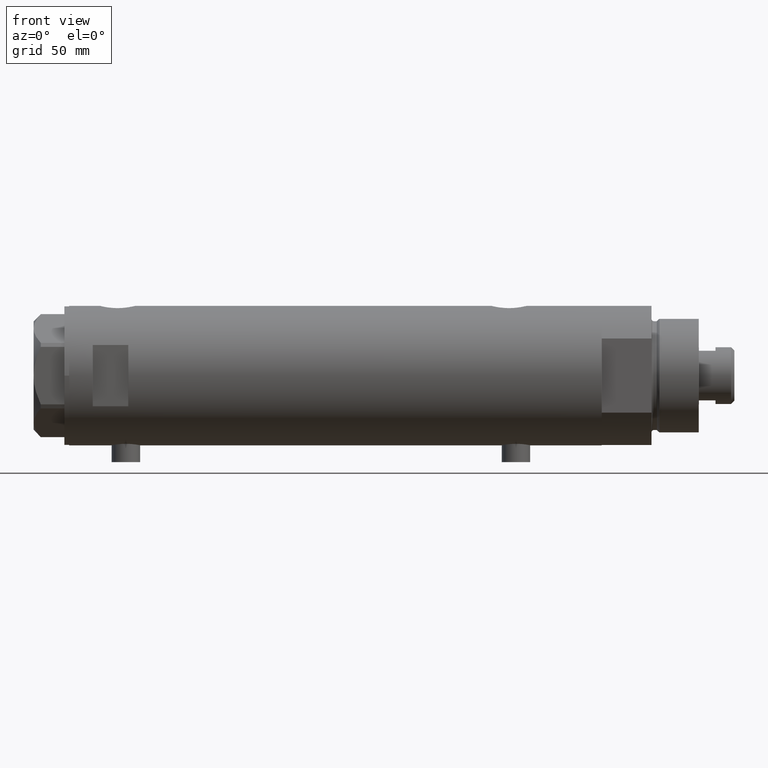
[diagram: clean part render]
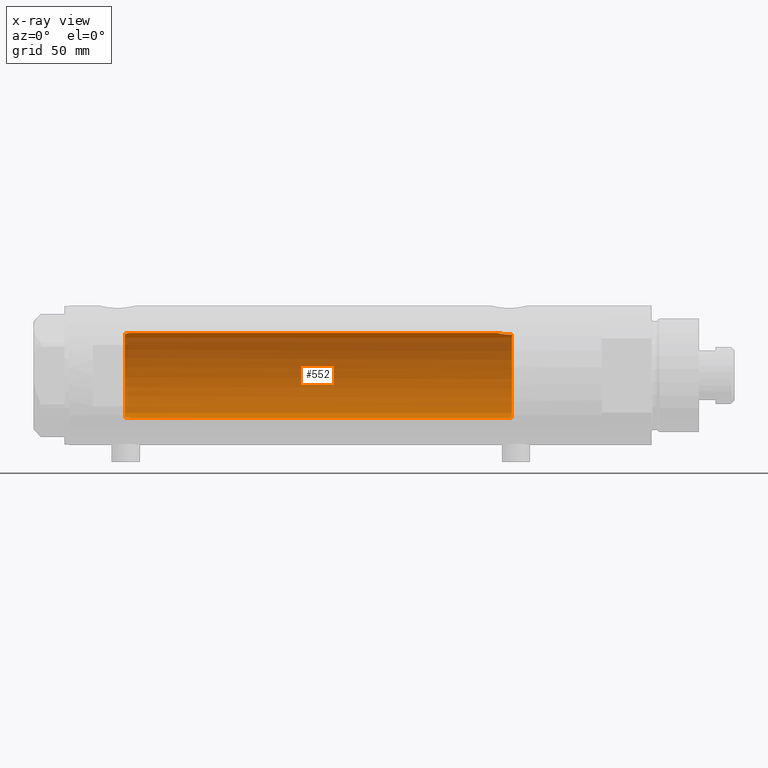
[diagram: x-ray — body ghosted, one internal face saturated and labeled with its STEP entity id]
A machine part, front view, then the same camera in x-ray: the body is ghosted and one INTERNAL B-rep face — a face not visible from any outside direction — is saturated and labeled: STEP entity #552.
In plain terms, the highlighted cylindrical surface (partial cylindrical patch) has radius 18 mm, axis along (1, 0, -0).
Its self-contained STEP definition (entity closure, byte-faithful):
#38 = CARTESIAN_POINT ( 'NONE',  ( 17.98587882862718601, 0.7362002489460812704, -68.58746722239204985 ) ) ;
#111 = CARTESIAN_POINT ( 'NONE',  ( 17.83051055968251930, 2.469307448774135327, -69.20420614498793555 ) ) ;
#116 = VERTEX_POINT ( 'NONE', #2078 ) ;
#178 = CARTESIAN_POINT ( 'NONE',  ( -18.00000000000000000, 0.3463326441765542940, -73.79999999999999716 ) ) ;
#213 = CARTESIAN_POINT ( 'NONE',  ( 17.91007218376326549, 1.805463612197647949, 87.57866376881658255 ) ) ;
#215 = VERTEX_POINT ( 'NONE', #452 ) ;
#222 = EDGE_CURVE ( 'NONE', #2439, #1744, #3154, .T. ) ;
#241 = DIRECTION ( 'NONE',  ( -0.000000000000000000, -0.000000000000000000, -1.000000000000000000 ) ) ;
#250 = CARTESIAN_POINT ( 'NONE',  ( 0.000000000000000000, 0.000000000000000000, 89.09999999999998010 ) ) ;
#260 = ORIENTED_EDGE ( 'NONE', *, *, #2205, .F. ) ;
#280 = CARTESIAN_POINT ( 'NONE',  ( 17.94405978035183580, 1.463580074031383349, -68.74553017623722440 ) ) ;
#320 = CARTESIAN_POINT ( 'NONE',  ( -18.00000000000000000, 3.061617490159550962E-16, 86.09999999999998010 ) ) ;
#359 = CARTESIAN_POINT ( 'NONE',  ( -17.95816418424195504, 1.237771781631975099, 86.42014148713398924 ) ) ;
#380 = AXIS2_PLACEMENT_3D ( 'NONE', #2017, #2712, #4204 ) ;
#385 = CARTESIAN_POINT ( 'NONE',  ( -17.82614870471583401, 2.495683684402662639, 88.36291490437699281 ) ) ;
#452 = CARTESIAN_POINT ( 'NONE',  ( -18.00000000000000000, 3.061617490159550962E-16, 86.09999999999998010 ) ) ;
#536 = CARTESIAN_POINT ( 'NONE',  ( -17.95286768021396284, 1.309280107997305764, -74.16336257470372573 ) ) ;
#546 = CARTESIAN_POINT ( 'NONE',  ( 17.63589737371338728, 3.604488512479872231, -70.12742655266251290 ) ) ;
#552 = ADVANCED_FACE ( 'NONE', ( #2943 ), #681, .F. ) ;
#592 = CARTESIAN_POINT ( 'NONE',  ( -17.83255450012700649, 2.449489742783172996, 89.09999999999998010 ) ) ;
#640 = CARTESIAN_POINT ( 'NONE',  ( -17.90642342847949919, 1.833030277983170642, -74.59999999999932641 ) ) ;
#653 = CARTESIAN_POINT ( 'NONE',  ( 0.000000000000000000, 0.000000000000000000, 112.5999999999999801 ) ) ;
#675 = B_SPLINE_CURVE_WITH_KNOTS ( 'NONE', 3,
 ( #1695, #1621, #2024, #536, #2694, #3816, #178, #3158 ),
 .UNSPECIFIED., .F., .F.,
 ( 4, 2, 2, 4 ),
 ( 0.01360098575045322854, 0.01411306367951529507, 0.01462514160857735987, 0.01564929746670149294 ),
 .UNSPECIFIED. ) ;
#681 = CYLINDRICAL_SURFACE ( 'NONE', #4507, 18.00000000000000000 ) ;
#708 = CARTESIAN_POINT ( 'NONE',  ( 17.32928165965088141, 4.867855194001448282, -73.31899018256650891 ) ) ;
#730 = CARTESIAN_POINT ( 'NONE',  ( -17.98790814410162398, 0.7389993272946852043, 86.18352974933831945 ) ) ;
#795 = CIRCLE ( 'NONE', #380, 18.00000000000000000 ) ;
#816 = CARTESIAN_POINT ( 'NONE',  ( 17.91189082287941758, 1.809824880389068857, -68.86912370284670715 ) ) ;
#851 = ORIENTED_EDGE ( 'NONE', *, *, #222, .F. ) ;
#865 = CARTESIAN_POINT ( 'NONE',  ( 17.68814035493779713, 3.348626323852635700, 88.55183600219629625 ) ) ;
#866 = CARTESIAN_POINT ( 'NONE',  ( 18.00000000000000000, 2.204364238465235428E-15, 112.5999999999999801 ) ) ;
#886 = CARTESIAN_POINT ( 'NONE',  ( 18.00000000000000000, 0.000000000000000000, 87.23499999999999943 ) ) ;
#905 = ORIENTED_EDGE ( 'NONE', *, *, #2640, .F. ) ;
#938 = AXIS2_PLACEMENT_3D ( 'NONE', #250, #1792, #1379 ) ;
#946 = VECTOR ( 'NONE', #4323, 1000.000000000000000 ) ;
#989 = VERTEX_POINT ( 'NONE', #2854 ) ;
#1046 = CARTESIAN_POINT ( 'NONE',  ( -17.82958311517957739, 2.471426257451372344, 88.18046645260449168 ) ) ;
#1226 = CARTESIAN_POINT ( 'NONE',  ( 18.00000000000000000, 5.958021438967649550E-16, -68.53499999999999659 ) ) ;
#1299 = CARTESIAN_POINT ( 'NONE',  ( 17.78617492856929516, 2.770629413254890316, 88.09682049650068336 ) ) ;
#1321 = CARTESIAN_POINT ( 'NONE',  ( 17.83158514913445103, 2.461498934476295641, 87.89965995681275501 ) ) ;
#1379 = DIRECTION ( 'NONE',  ( 1.000000000000000000, 0.000000000000000000, 0.000000000000000000 ) ) ;
#1395 = EDGE_CURVE ( 'NONE', #215, #2418, #3277, .T. ) ;
#1443 = DIRECTION ( 'NONE',  ( -1.000000000000000000, 0.000000000000000000, 0.000000000000000000 ) ) ;
#1472 = CARTESIAN_POINT ( 'NONE',  ( -17.88283752013080985, 2.053809615874002681, 87.16247768058089207 ) ) ;
#1483 = CIRCLE ( 'NONE', #938, 18.00000000000000000 ) ;
#1615 = CARTESIAN_POINT ( 'NONE',  ( 18.00000000000000000, 0.3728474842072334039, 87.23500000000001364 ) ) ;
#1621 = CARTESIAN_POINT ( 'NONE',  ( -17.91832049203241084, 1.716810780632745725, -74.47468596615662761 ) ) ;
#1664 = CARTESIAN_POINT ( 'NONE',  ( 17.58783030962034033, 3.829911878881809173, 89.09999999999998010 ) ) ;
#1677 = CARTESIAN_POINT ( 'NONE',  ( 17.61032289555864239, 3.726910670425182204, -70.26756985850234116 ) ) ;
#1695 = CARTESIAN_POINT ( 'NONE',  ( -17.90642342847949919, 1.833030277983170642, -74.59999999999932641 ) ) ;
#1719 = CARTESIAN_POINT ( 'NONE',  ( 18.00000000000000000, 0.000000000000000000, 87.23499999999999943 ) ) ;
#1744 = VERTEX_POINT ( 'NONE', #4585 ) ;
#1792 = DIRECTION ( 'NONE',  ( 0.000000000000000000, 0.000000000000000000, 1.000000000000000000 ) ) ;
#1905 = CARTESIAN_POINT ( 'NONE',  ( 17.33262691996381122, 4.855935766715059998, -73.87488940890202116 ) ) ;
#1996 = CARTESIAN_POINT ( 'NONE',  ( 17.78478726694685008, 2.779555353823083497, -69.40297143050467810 ) ) ;
#2000 = B_SPLINE_CURVE_WITH_KNOTS ( 'NONE', 3,
 ( #320, #4034, #730, #359, #3284, #4384, #2606, #1472, #4067, #4085, #2241, #1046, #385, #2510, #4483, #3746 ),
 .UNSPECIFIED., .F., .F.,
 ( 4, 2, 2, 2, 2, 2, 2, 4 ),
 ( 0.007825597788866827872, 0.008929372539743339957, 0.009481259915181604672, 0.01003314729061987112, 0.01058503466605813584, 0.01113692204149640055, 0.01168880941693466527, 0.01224069679237292999 ),
 .UNSPECIFIED. ) ;
#2017 = CARTESIAN_POINT ( 'NONE',  ( 0.000000000000000000, 0.000000000000000000, -74.59999999999999432 ) ) ;
#2024 = CARTESIAN_POINT ( 'NONE',  ( -17.93028482699293136, 1.588885888720764861, -74.36224988169318806 ) ) ;
#2078 = CARTESIAN_POINT ( 'NONE',  ( 17.58783030962034033, 3.829911878881809173, 89.09999999999998010 ) ) ;
#2117 = EDGE_CURVE ( 'NONE', #215, #2602, #2000, .T. ) ;
#2123 = CARTESIAN_POINT ( 'NONE',  ( 17.99716691696285764, 0.3685254503903798162, -68.54545042928663179 ) ) ;
#2161 = CARTESIAN_POINT ( 'NONE',  ( 17.38237957915196930, 4.675094569549007595, -72.04138980228258049 ) ) ;
#2205 = EDGE_CURVE ( 'NONE', #1744, #989, #3080, .T. ) ;
#2241 = CARTESIAN_POINT ( 'NONE',  ( -17.84158955897572696, 2.383204526717101146, 87.82263758307625778 ) ) ;
#2418 = VERTEX_POINT ( 'NONE', #4769 ) ;
#2435 = CARTESIAN_POINT ( 'NONE',  ( 17.98843015915092636, 0.7391836159806510764, 87.27731130524777825 ) ) ;
#2439 = VERTEX_POINT ( 'NONE', #1719 ) ;
#2471 = CARTESIAN_POINT ( 'NONE',  ( 17.43128843254317673, 4.489613141718955980, -71.51700003713169451 ) ) ;
#2510 = CARTESIAN_POINT ( 'NONE',  ( -17.82508408272472877, 2.503276281002373427, 88.73510831259079623 ) ) ;
#2521 = CARTESIAN_POINT ( 'NONE',  ( 17.53642083926971651, 4.065376572064631766, -70.70260027543616843 ) ) ;
#2602 = VERTEX_POINT ( 'NONE', #592 ) ;
#2606 = CARTESIAN_POINT ( 'NONE',  ( -17.90830209998921063, 1.818440982043824983, 86.87434744171713419 ) ) ;
#2640 = EDGE_CURVE ( 'NONE', #4378, #2418, #675, .T. ) ;
#2694 = CARTESIAN_POINT ( 'NONE',  ( -17.96336505771914815, 1.158437137172642295, -74.07804627005671705 ) ) ;
#2712 = DIRECTION ( 'NONE',  ( 0.000000000000000000, 0.000000000000000000, -1.000000000000000000 ) ) ;
#2762 = CARTESIAN_POINT ( 'NONE',  ( 17.95540531162507136, 1.279032093992329422, 87.40250861430335760 ) ) ;
#2763 = DIRECTION ( 'NONE',  ( -0.000000000000000000, -0.000000000000000000, -1.000000000000000000 ) ) ;
#2789 = CARTESIAN_POINT ( 'NONE',  ( 17.89217382667230893, 1.974183297225214906, 87.64981302266164676 ) ) ;
#2827 = CARTESIAN_POINT ( 'NONE',  ( 17.71174132276682300, 3.211689381115075737, -69.74121359250870000 ) ) ;
#2854 = CARTESIAN_POINT ( 'NONE',  ( 17.37157951943346035, 4.714681855650494136, -74.59999999999999432 ) ) ;
#2943 = FACE_OUTER_BOUND ( 'NONE', #3168, .T. ) ;
#2944 = ORIENTED_EDGE ( 'NONE', *, *, #4303, .F. ) ;
#2974 = CARTESIAN_POINT ( 'NONE',  ( 17.34671983132638218, 4.806279138776325510, -74.24012329268310850 ) ) ;
#3047 = ORIENTED_EDGE ( 'NONE', *, *, #1395, .T. ) ;
#3080 = B_SPLINE_CURVE_WITH_KNOTS ( 'NONE', 3,
 ( #1226, #3278, #2123, #38, #4153, #280, #816, #3733, #111, #1996, #3196, #2827, #3599, #546, #1677, #2521, #4725, #2471, #3550, #2161, #3201, #3581, #3361, #708, #1905, #2974, #3293 ),
 .UNSPECIFIED., .F., .F.,
 ( 4, 2, 2, 2, 2, 2, 2, 2, 2, 2, 1, 2, 2, 4 ),
 ( 0.01528157848519460030, 0.01583467956029640383, 0.01638778063539821084, 0.01749398278560181097, 0.01804708386070360063, 0.01860018493580539375, 0.01915328601090718341, 0.01970638708600897654, 0.02081258923621259055, 0.02136569031131440102, 0.02191879138641621150, 0.02247189246151801850, 0.02302499353661982551, 0.02413119568682348462 ),
 .UNSPECIFIED. ) ;
#3101 = CARTESIAN_POINT ( 'NONE',  ( 17.85293122918850628, 2.302201220737751353, 87.81031080804814337 ) ) ;
#3129 = CARTESIAN_POINT ( 'NONE',  ( 17.63704841537101586, 3.603891093161664561, 88.81145343596536179 ) ) ;
#3154 = LINE ( 'NONE', #866, #4181 ) ;
#3158 = CARTESIAN_POINT ( 'NONE',  ( -18.00000000000000000, 0.000000000000000000, -73.79999999999999716 ) ) ;
#3168 = EDGE_LOOP ( 'NONE', ( #851, #2944, #4221, #3503, #3047, #905, #3953, #260 ) ) ;
#3196 = CARTESIAN_POINT ( 'NONE',  ( 17.76085061188610936, 2.927954048074870919, -69.51043039029092085 ) ) ;
#3201 = CARTESIAN_POINT ( 'NONE',  ( 17.35631194664785681, 4.771042759406573630, -72.39667763205956419 ) ) ;
#3277 = LINE ( 'NONE', #4709, #946 ) ;
#3278 = CARTESIAN_POINT ( 'NONE',  ( 18.00000000000000355, 0.1844036484100888551, -68.53500000000001080 ) ) ;
#3284 = CARTESIAN_POINT ( 'NONE',  ( -17.94624864476198312, 1.397590066628585426, 86.51900161024209979 ) ) ;
#3293 = CARTESIAN_POINT ( 'NONE',  ( 17.37157951943346035, 4.714681855650494136, -74.59999999999999432 ) ) ;
#3361 = CARTESIAN_POINT ( 'NONE',  ( 17.33118376015917050, 4.861110225087390546, -73.13112109378174353 ) ) ;
#3441 = CARTESIAN_POINT ( 'NONE',  ( 17.94167814235965963, 1.458276351914862490, 87.45504464479718365 ) ) ;
#3482 = B_SPLINE_CURVE_WITH_KNOTS ( 'NONE', 3,
 ( #1664, #3129, #865, #3811, #1299, #1321, #3101, #2789, #213, #3441, #2762, #2435, #1615, #886 ),
 .UNSPECIFIED., .F., .F.,
 ( 4, 2, 2, 2, 2, 2, 4 ),
 ( 0.02614985543880327459, 0.02725214354003946751, 0.02780328759065755009, 0.02835443164127563268, 0.02890557569189371526, 0.02945671974251179437, 0.03055900784374796994 ),
 .UNSPECIFIED. ) ;
#3503 = ORIENTED_EDGE ( 'NONE', *, *, #2117, .F. ) ;
#3550 = CARTESIAN_POINT ( 'NONE',  ( 17.41328271218090151, 4.558641711475909908, -71.69087254718661484 ) ) ;
#3581 = CARTESIAN_POINT ( 'NONE',  ( 17.34085862114803334, 4.826483754267692383, -72.76145238513613833 ) ) ;
#3599 = CARTESIAN_POINT ( 'NONE',  ( 17.68656644271518275, 3.347025706529861200, -69.86453774950912532 ) ) ;
#3733 = CARTESIAN_POINT ( 'NONE',  ( 17.85236636886078188, 2.306694554785098106, -69.11264586133007981 ) ) ;
#3746 = CARTESIAN_POINT ( 'NONE',  ( -17.83255450012700649, 2.449489742783172996, 89.09999999999998010 ) ) ;
#3811 = CARTESIAN_POINT ( 'NONE',  ( 17.76196254920471773, 2.921230608637935156, 88.20535341986155231 ) ) ;
#3816 = CARTESIAN_POINT ( 'NONE',  ( -17.98949107760678245, 0.6899666364176424427, -73.87303358989281321 ) ) ;
#3953 = ORIENTED_EDGE ( 'NONE', *, *, #4281, .T. ) ;
#3966 = EDGE_CURVE ( 'NONE', #116, #2602, #1483, .T. ) ;
#4034 = CARTESIAN_POINT ( 'NONE',  ( -18.00000000000000711, 0.3684436523298857957, 86.10000000000000853 ) ) ;
#4067 = CARTESIAN_POINT ( 'NONE',  ( -17.87088460660653766, 2.153683778660669290, 87.31724841463824305 ) ) ;
#4085 = CARTESIAN_POINT ( 'NONE',  ( -17.85029215802977376, 2.318176074868579128, 87.64613149013023019 ) ) ;
#4153 = CARTESIAN_POINT ( 'NONE',  ( 17.97733715731490989, 0.9209699998971188073, -68.61935966604423243 ) ) ;
#4181 = VECTOR ( 'NONE', #2763, 1000.000000000000000 ) ;
#4204 = DIRECTION ( 'NONE',  ( -1.000000000000000000, 0.000000000000000000, 0.000000000000000000 ) ) ;
#4221 = ORIENTED_EDGE ( 'NONE', *, *, #3966, .T. ) ;
#4281 = EDGE_CURVE ( 'NONE', #4378, #989, #795, .T. ) ;
#4303 = EDGE_CURVE ( 'NONE', #116, #2439, #3482, .T. ) ;
#4323 = DIRECTION ( 'NONE',  ( -0.000000000000000000, -0.000000000000000000, -1.000000000000000000 ) ) ;
#4378 = VERTEX_POINT ( 'NONE', #640 ) ;
#4384 = CARTESIAN_POINT ( 'NONE',  ( -17.92135699193089238, 1.687027558082471623, 86.74588287565646283 ) ) ;
#4483 = CARTESIAN_POINT ( 'NONE',  ( -17.82749843654113420, 2.486298441295534012, 88.91967494109754000 ) ) ;
#4507 = AXIS2_PLACEMENT_3D ( 'NONE', #653, #241, #1443 ) ;
#4585 = CARTESIAN_POINT ( 'NONE',  ( 18.00000000000000000, 5.958021438967649550E-16, -68.53499999999999659 ) ) ;
#4709 = CARTESIAN_POINT ( 'NONE',  ( -18.00000000000000000, 0.000000000000000000, 112.5999999999999801 ) ) ;
#4725 = CARTESIAN_POINT ( 'NONE',  ( 17.49030773641652559, 4.256160900234556621, -71.01469509681784587 ) ) ;
#4769 = CARTESIAN_POINT ( 'NONE',  ( -18.00000000000000000, 0.000000000000000000, -73.79999999999999716 ) ) ;